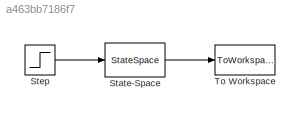
MODEL slx_a463bb7186f7
KIND model
CONFIG InitFcn = m=1000;\nb=50;\nu=500;
CONFIG StopFcn = plot(v)\ngrid
BLOCK [StateSpace] State-Space
  A = [0 1; 0 -b/m]
  B = [0; 1/m]
  C = [0 1]
  D = 0
  Ports = [1, 1]
  X0 = 0
BLOCK [Step] Step
  After = 500
  Before = 500
  SampleTime = 0.01
  Time = 0
BLOCK [ToWorkspace] To Workspace
  FixptAsFi = on
  MaxDataPoints = inf
  Ports = [1]
  SampleTime = -1
  Save2DSignal = 3-D array (concatenate along third dimension)
  SaveFormat = Timeseries
  VariableName = v
LINE State-Space:1 -> To Workspace:1
LINE Step:1 -> State-Space:1
